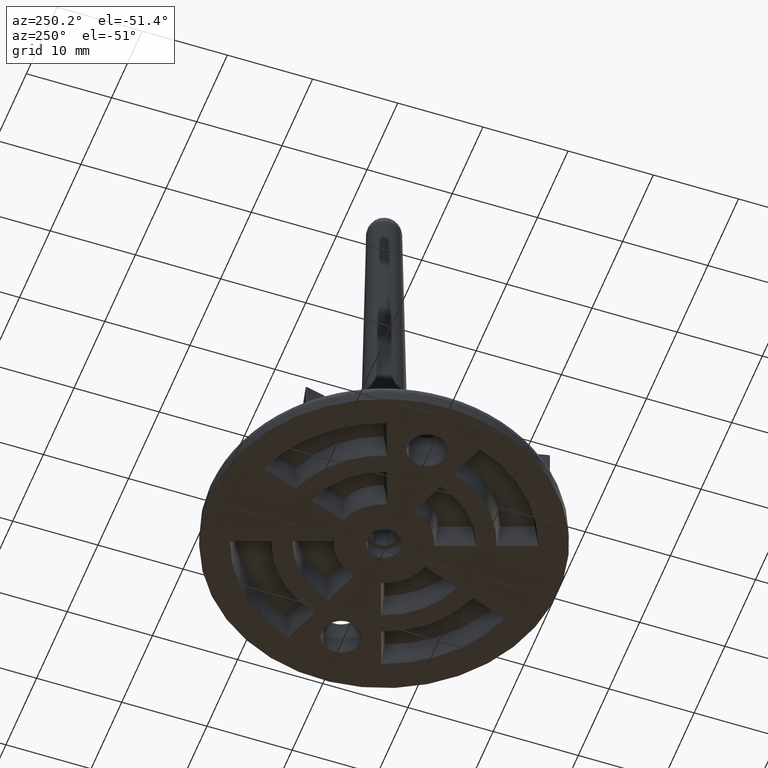
[diagram: clean part render]
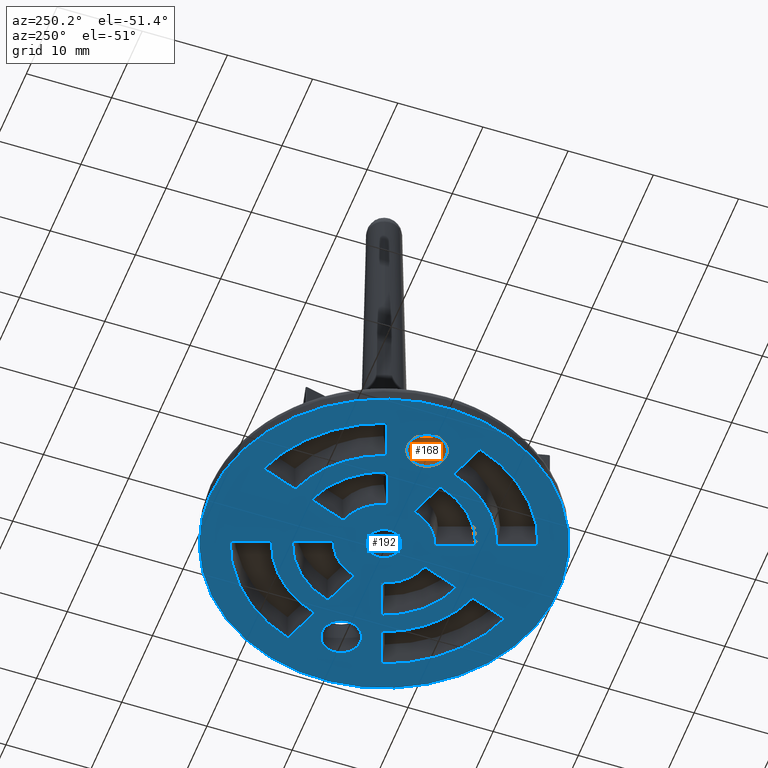
[diagram: same view with the hole feature highlighted: cylindrical wall and planar end face, labeled with their STEP entity ids]
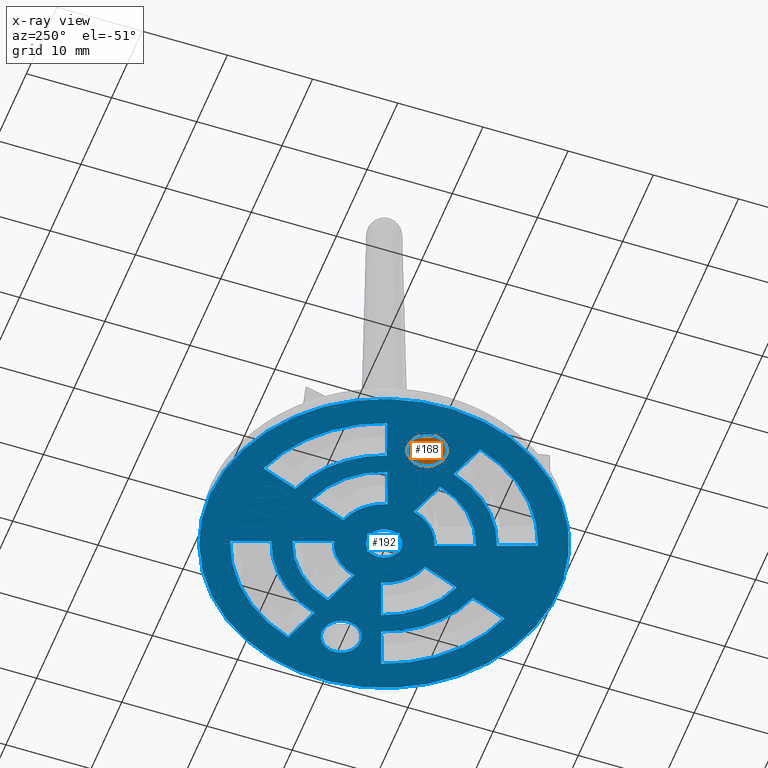
[diagram: x-ray of the same camera — body ghosted, the hole faces saturated]
A machine part, auxiliary view. The highlighted faces form one hole feature of diameter 4.5 mm: the cylindrical wall (entity #168, orange) and its adjacent planar end face (entity #192, blue) — they share a circular edge in the B-rep.
The next image is the same camera in x-ray (body ghosted, the hole faces saturated) — the bore reads through the body.
Wall:
#168 = ADVANCED_FACE( '', ( #342, #343 ), #344, .F. );
#342 = FACE_OUTER_BOUND( '', #618, .T. );
#343 = FACE_OUTER_BOUND( '', #619, .T. );
#344 = CYLINDRICAL_SURFACE( '', #620, 2.25000000000000 );
#618 = EDGE_LOOP( '', ( #1151 ) );
#619 = EDGE_LOOP( '', ( #1152 ) );
#620 = AXIS2_PLACEMENT_3D( '', #1153, #1154, #1155 );
#1151 = ORIENTED_EDGE( '', *, *, #1845, .F. );
#1152 = ORIENTED_EDGE( '', *, *, #1693, .T. );
#1153 = CARTESIAN_POINT( '', ( -14.0000000000000, 6.42906561168512E-015, 34.9993590001010 ) );
#1154 = DIRECTION( '', ( -1.12474554136660E-032, 1.83690953073357E-016, 1.00000000000000 ) );
#1155 = DIRECTION( '', ( -1.00000000000000, -3.03858167864314E-064, -1.12474554136660E-032 ) );
#1693 = EDGE_CURVE( '', #1973, #1973, #1974, .F. );
#1845 = EDGE_CURVE( '', #2237, #2237, #2238, .T. );
#1973 = VERTEX_POINT( '', #2433 );
#1974 = CIRCLE( '', #2434, 2.25000000000000 );
#2237 = VERTEX_POINT( '', #2904 );
#2238 = CIRCLE( '', #2905, 2.25000000000000 );
#2433 = CARTESIAN_POINT( '', ( -14.0000000000000, 2.25000000000000, 4.99990699999999 ) );
#2434 = AXIS2_PLACEMENT_3D( '', #3200, #3201, #3202 );
#2904 = CARTESIAN_POINT( '', ( -11.7500000000000, -9.18435845238954E-022, -4.99989699989656E-006 ) );
#2905 = AXIS2_PLACEMENT_3D( '', #3395, #3396, #3397 );
#3200 = CARTESIAN_POINT( '', ( -14.0000000000000, 9.18437682108146E-016, 4.99990699999999 ) );
#3201 = DIRECTION( '', ( 1.12474554136660E-032, -1.83690953073357E-016, -1.00000000000000 ) );
#3202 = DIRECTION( '', ( 0.000000000000000, 1.00000000000000, -1.83690953073357E-016 ) );
#3395 = CARTESIAN_POINT( '', ( -14.0000000000000, -9.18435845238954E-022, -4.99989699989656E-006 ) );
#3396 = DIRECTION( '', ( -1.12474554136660E-032, -1.26466724719837E-022, 1.00000000000000 ) );
#3397 = DIRECTION( '', ( 1.00000000000000, 4.75158170683057E-048, 1.12474554136660E-032 ) );
End face:
#192 = ADVANCED_FACE( '', ( #398, #399, #400, #401, #402, #403, #404, #405, #406, #407, #408, #409 ), #410, .F. );
#398 = FACE_BOUND( '', #674, .T. );
#399 = FACE_BOUND( '', #675, .T. );
#400 = FACE_BOUND( '', #676, .T. );
#401 = FACE_BOUND( '', #677, .T. );
#402 = FACE_BOUND( '', #678, .T. );
#403 = FACE_BOUND( '', #679, .T. );
#404 = FACE_BOUND( '', #680, .T. );
#405 = FACE_OUTER_BOUND( '', #681, .T. );
#406 = FACE_BOUND( '', #682, .T. );
#407 = FACE_BOUND( '', #683, .T. );
#408 = FACE_BOUND( '', #684, .T. );
#409 = FACE_BOUND( '', #685, .T. );
#410 = PLANE( '', #686 );
#674 = EDGE_LOOP( '', ( #1324 ) );
#675 = EDGE_LOOP( '', ( #1325 ) );
#676 = EDGE_LOOP( '', ( #1326 ) );
#677 = EDGE_LOOP( '', ( #1327, #1328, #1329, #1330 ) );
#678 = EDGE_LOOP( '', ( #1331, #1332, #1333, #1334 ) );
#679 = EDGE_LOOP( '', ( #1335, #1336, #1337, #1338 ) );
#680 = EDGE_LOOP( '', ( #1339, #1340, #1341, #1342 ) );
#681 = EDGE_LOOP( '', ( #1343 ) );
#682 = EDGE_LOOP( '', ( #1344, #1345, #1346, #1347 ) );
#683 = EDGE_LOOP( '', ( #1348, #1349, #1350, #1351 ) );
#684 = EDGE_LOOP( '', ( #1352, #1353, #1354, #1355 ) );
#685 = EDGE_LOOP( '', ( #1356, #1357, #1358, #1359 ) );
#686 = AXIS2_PLACEMENT_3D( '', #1360, #1361, #1362 );
#1324 = ORIENTED_EDGE( '', *, *, #1879, .T. );
#1325 = ORIENTED_EDGE( '', *, *, #1885, .T. );
#1326 = ORIENTED_EDGE( '', *, *, #1845, .T. );
#1327 = ORIENTED_EDGE( '', *, *, #1749, .F. );
#1328 = ORIENTED_EDGE( '', *, *, #1752, .F. );
#1329 = ORIENTED_EDGE( '', *, *, #1754, .F. );
#1330 = ORIENTED_EDGE( '', *, *, #1755, .F. );
#1331 = ORIENTED_EDGE( '', *, *, #1770, .F. );
#1332 = ORIENTED_EDGE( '', *, *, #1774, .F. );
#1333 = ORIENTED_EDGE( '', *, *, #1777, .F. );
#1334 = ORIENTED_EDGE( '', *, *, #1779, .F. );
#1335 = ORIENTED_EDGE( '', *, *, #1794, .F. );
#1336 = ORIENTED_EDGE( '', *, *, #1798, .F. );
#1337 = ORIENTED_EDGE( '', *, *, #1801, .F. );
#1338 = ORIENTED_EDGE( '', *, *, #1803, .F. );
#1339 = ORIENTED_EDGE( '', *, *, #1810, .T. );
#1340 = ORIENTED_EDGE( '', *, *, #1814, .T. );
#1341 = ORIENTED_EDGE( '', *, *, #1815, .T. );
#1342 = ORIENTED_EDGE( '', *, *, #1806, .T. );
#1343 = ORIENTED_EDGE( '', *, *, #1711, .T. );
#1344 = ORIENTED_EDGE( '', *, *, #1782, .F. );
#1345 = ORIENTED_EDGE( '', *, *, #1786, .F. );
#1346 = ORIENTED_EDGE( '', *, *, #1789, .F. );
#1347 = ORIENTED_EDGE( '', *, *, #1791, .F. );
#1348 = ORIENTED_EDGE( '', *, *, #1758, .F. );
#1349 = ORIENTED_EDGE( '', *, *, #1762, .F. );
#1350 = ORIENTED_EDGE( '', *, *, #1765, .F. );
#1351 = ORIENTED_EDGE( '', *, *, #1767, .F. );
#1352 = ORIENTED_EDGE( '', *, *, #1738, .T. );
#1353 = ORIENTED_EDGE( '', *, *, #1742, .T. );
#1354 = ORIENTED_EDGE( '', *, *, #1743, .T. );
#1355 = ORIENTED_EDGE( '', *, *, #1734, .T. );
#1356 = ORIENTED_EDGE( '', *, *, #1722, .F. );
#1357 = ORIENTED_EDGE( '', *, *, #1726, .F. );
#1358 = ORIENTED_EDGE( '', *, *, #1729, .F. );
#1359 = ORIENTED_EDGE( '', *, *, #1731, .F. );
#1360 = CARTESIAN_POINT( '', ( 20.4344021649691, 1.25120493638915E-015, 6.25602468194573E-016 ) );
#1361 = DIRECTION( '', ( -1.12474554136660E-032, 1.83690953073357E-016, 1.00000000000000 ) );
#1362 = DIRECTION( '', ( 6.12303176911189E-017, -1.00000000000000, 1.83690953073357E-016 ) );
#1711 = EDGE_CURVE( '', #2009, #2009, #2010, .T. );
#1722 = EDGE_CURVE( '', #2027, #2029, #2030, .T. );
#1726 = EDGE_CURVE( '', #2034, #2027, #2036, .T. );
#1729 = EDGE_CURVE( '', #2039, #2034, #2041, .F. );
#1731 = EDGE_CURVE( '', #2029, #2039, #2043, .T. );
#1734 = EDGE_CURVE( '', #2049, #2047, #2050, .F. );
#1738 = EDGE_CURVE( '', #2047, #2054, #2056, .F. );
#1742 = EDGE_CURVE( '', #2054, #2060, #2062, .T. );
#1743 = EDGE_CURVE( '', #2060, #2049, #2063, .F. );
#1749 = EDGE_CURVE( '', #2072, #2074, #2075, .T. );
#1752 = EDGE_CURVE( '', #2077, #2072, #2079, .T. );
#1754 = EDGE_CURVE( '', #2080, #2077, #2082, .F. );
#1755 = EDGE_CURVE( '', #2074, #2080, #2083, .T. );
#1758 = EDGE_CURVE( '', #2087, #2089, #2090, .T. );
#1762 = EDGE_CURVE( '', #2094, #2087, #2096, .T. );
#1765 = EDGE_CURVE( '', #2099, #2094, #2101, .F. );
#1767 = EDGE_CURVE( '', #2089, #2099, #2103, .T. );
#1770 = EDGE_CURVE( '', #2107, #2109, #2110, .T. );
#1774 = EDGE_CURVE( '', #2114, #2107, #2116, .F. );
#1777 = EDGE_CURVE( '', #2119, #2114, #2121, .T. );
#1779 = EDGE_CURVE( '', #2109, #2119, #2123, .T. );
#1782 = EDGE_CURVE( '', #2127, #2129, #2130, .T. );
#1786 = EDGE_CURVE( '', #2134, #2127, #2136, .F. );
#1789 = EDGE_CURVE( '', #2139, #2134, #2141, .T. );
#1791 = EDGE_CURVE( '', #2129, #2139, #2143, .T. );
#1794 = EDGE_CURVE( '', #2147, #2149, #2150, .T. );
#1798 = EDGE_CURVE( '', #2154, #2147, #2156, .F. );
#1801 = EDGE_CURVE( '', #2159, #2154, #2161, .T. );
#1803 = EDGE_CURVE( '', #2149, #2159, #2163, .T. );
#1806 = EDGE_CURVE( '', #2169, #2167, #2170, .F. );
#1810 = EDGE_CURVE( '', #2167, #2174, #2176, .F. );
#1814 = EDGE_CURVE( '', #2174, #2180, #2182, .F. );
#1815 = EDGE_CURVE( '', #2180, #2169, #2183, .T. );
#1845 = EDGE_CURVE( '', #2237, #2237, #2238, .T. );
#1879 = EDGE_CURVE( '', #2290, #2290, #2291, .T. );
#1885 = EDGE_CURVE( '', #2302, #2302, #2303, .T. );
#2009 = VERTEX_POINT( '', #2485 );
#2010 = CIRCLE( '', #2486, 20.4344021649691 );
#2027 = VERTEX_POINT( '', #2511 );
#2029 = VERTEX_POINT( '', #2516 );
#2030 = CIRCLE( '', #2517, 12.4511506137665 );
#2034 = VERTEX_POINT( '', #2525 );
#2036 = LINE( '', #2530, #2531 );
#2039 = VERTEX_POINT( '', #2534 );
#2041 = CIRCLE( '', #2539, 17.0178493862335 );
#2043 = LINE( '', #2542, #2543 );
#2047 = VERTEX_POINT( '', #2547 );
#2049 = VERTEX_POINT( '', #2552 );
#2050 = CIRCLE( '', #2553, 10.1417493862335 );
#2054 = VERTEX_POINT( '', #2561 );
#2056 = LINE( '', #2566, #2567 );
#2060 = VERTEX_POINT( '', #2572 );
#2062 = CIRCLE( '', #2577, 5.57505061376649 );
#2063 = LINE( '', #2578, #2579 );
#2072 = VERTEX_POINT( '', #2590 );
#2074 = VERTEX_POINT( '', #2595 );
#2075 = CIRCLE( '', #2596, 17.0178493862335 );
#2077 = VERTEX_POINT( '', #2601 );
#2079 = LINE( '', #2606, #2607 );
#2080 = VERTEX_POINT( '', #2608 );
#2082 = CIRCLE( '', #2613, 12.4511506137665 );
#2083 = LINE( '', #2614, #2615 );
#2087 = VERTEX_POINT( '', #2619 );
#2089 = VERTEX_POINT( '', #2624 );
#2090 = CIRCLE( '', #2625, 5.57505061376649 );
#2094 = VERTEX_POINT( '', #2633 );
#2096 = LINE( '', #2638, #2639 );
#2099 = VERTEX_POINT( '', #2642 );
#2101 = CIRCLE( '', #2647, 10.1417493862335 );
#2103 = LINE( '', #2650, #2651 );
#2107 = VERTEX_POINT( '', #2656 );
#2109 = VERTEX_POINT( '', #2661 );
#2110 = LINE( '', #2662, #2663 );
#2114 = VERTEX_POINT( '', #2670 );
#2116 = CIRCLE( '', #2675, 5.57505061376649 );
#2119 = VERTEX_POINT( '', #2679 );
#2121 = LINE( '', #2684, #2685 );
#2123 = CIRCLE( '', #2687, 10.1417493862335 );
#2127 = VERTEX_POINT( '', #2692 );
#2129 = VERTEX_POINT( '', #2697 );
#2130 = LINE( '', #2698, #2699 );
#2134 = VERTEX_POINT( '', #2706 );
#2136 = CIRCLE( '', #2711, 12.4511506137665 );
#2139 = VERTEX_POINT( '', #2715 );
#2141 = LINE( '', #2720, #2721 );
#2143 = CIRCLE( '', #2723, 17.0178493862335 );
#2147 = VERTEX_POINT( '', #2728 );
#2149 = VERTEX_POINT( '', #2733 );
#2150 = LINE( '', #2734, #2735 );
#2154 = VERTEX_POINT( '', #2742 );
#2156 = CIRCLE( '', #2747, 12.4511506137665 );
#2159 = VERTEX_POINT( '', #2751 );
#2161 = LINE( '', #2756, #2757 );
#2163 = CIRCLE( '', #2759, 17.0178493862335 );
#2167 = VERTEX_POINT( '', #2764 );
#2169 = VERTEX_POINT( '', #2769 );
#2170 = LINE( '', #2770, #2771 );
#2174 = VERTEX_POINT( '', #2778 );
#2176 = CIRCLE( '', #2783, 10.1417493862335 );
#2180 = VERTEX_POINT( '', #2788 );
#2182 = LINE( '', #2793, #2794 );
#2183 = CIRCLE( '', #2795, 5.57505061376649 );
#2237 = VERTEX_POINT( '', #2904 );
#2238 = CIRCLE( '', #2905, 2.25000000000000 );
#2290 = VERTEX_POINT( '', #3026 );
#2291 = CIRCLE( '', #3027, 2.00000000000000 );
#2302 = VERTEX_POINT( '', #3038 );
#2303 = CIRCLE( '', #3039, 2.25000000000001 );
#2485 = CARTESIAN_POINT( '', ( -1.25120493638915E-015, 20.4344021649691, -3.75361480916744E-015 ) );
#2486 = AXIS2_PLACEMENT_3D( '', #3222, #3223, #3224 );
#2511 = CARTESIAN_POINT( '', ( 3.91100585500280, -11.8209637851079, 2.59740882154510E-015 ) );
#2516 = CARTESIAN_POINT( '', ( 11.8209637851079, -3.91100585500280, 1.14442111059395E-015 ) );
#2517 = AXIS2_PLACEMENT_3D( '', #3236, #3237, #3238 );
#2525 = CARTESIAN_POINT( '', ( 5.47340782340071, -16.1136279133926, 3.38593238649353E-015 ) );
#2530 = CARTESIAN_POINT( '', ( -0.345679449193570, -0.125817030103995, 4.49116167785666E-016 ) );
#2531 = VECTOR( '', #3240, 1000.00000000000 );
#2534 = CARTESIAN_POINT( '', ( 16.1136279133926, -5.47340782340071, 1.43142021725265E-015 ) );
#2539 = AXIS2_PLACEMENT_3D( '', #3244, #3245, #3246 );
#2542 = CARTESIAN_POINT( '', ( 0.125817030103996, 0.345679449193571, 3.62506530132764E-016 ) );
#2543 = VECTOR( '', #3248, 1000.00000000000 );
#2547 = CARTESIAN_POINT( '', ( 9.64967273565335, -3.12072054307273, 9.99252848445638E-016 ) );
#2552 = CARTESIAN_POINT( '', ( 3.12072054307274, -9.64967273565335, 2.19856229927115E-015 ) );
#2553 = AXIS2_PLACEMENT_3D( '', #3252, #3253, #3254 );
#2561 = CARTESIAN_POINT( '', ( 5.35323384756485, -1.55694467446474, 7.12001368747919E-016 ) );
#2566 = CARTESIAN_POINT( '', ( 0.125817030103998, 0.345679449193571, 3.62506530132764E-016 ) );
#2567 = VECTOR( '', #3256, 1000.00000000000 );
#2572 = CARTESIAN_POINT( '', ( 1.55694467446474, -5.35323384756485, 1.40934534509674E-015 ) );
#2577 = AXIS2_PLACEMENT_3D( '', #3261, #3262, #3263 );
#2578 = CARTESIAN_POINT( '', ( -1.90273881042324, 4.15216840562495, -3.36711054137321E-016 ) );
#2579 = VECTOR( '', #3264, 1000.00000000000 );
#2590 = CARTESIAN_POINT( '', ( -5.47340782340071, -16.1136279133926, 3.38593238649353E-015 ) );
#2595 = CARTESIAN_POINT( '', ( -16.1136279133926, -5.47340782340071, 1.43142021725265E-015 ) );
#2596 = AXIS2_PLACEMENT_3D( '', #3273, #3274, #3275 );
#2601 = CARTESIAN_POINT( '', ( -3.91100585500280, -11.8209637851079, 2.59740882154510E-015 ) );
#2606 = CARTESIAN_POINT( '', ( 2.37827608926584, 5.45869634135389, -5.76708415868336E-016 ) );
#2607 = VECTOR( '', #3276, 1000.00000000000 );
#2608 = CARTESIAN_POINT( '', ( -11.8209637851079, -3.91100585500280, 1.14442111059395E-015 ) );
#2613 = AXIS2_PLACEMENT_3D( '', #3277, #3278, #3279 );
#2614 = CARTESIAN_POINT( '', ( 3.46383897119794, 1.65220738492252, 1.22509168401749E-016 ) );
#2615 = VECTOR( '', #3280, 1000.00000000000 );
#2619 = CARTESIAN_POINT( '', ( -5.35323384756485, -1.55694467446474, 7.12001368747919E-016 ) );
#2624 = CARTESIAN_POINT( '', ( -1.55694467446474, -5.35323384756485, 1.40934534509674E-015 ) );
#2625 = AXIS2_PLACEMENT_3D( '', #3284, #3285, #3286 );
#2633 = CARTESIAN_POINT( '', ( -9.64967273565335, -3.12072054307273, 9.99252848445637E-016 ) );
#2638 = CARTESIAN_POINT( '', ( -0.125817030103997, 0.345679449193574, 3.62506530132764E-016 ) );
#2639 = VECTOR( '', #3288, 1000.00000000000 );
#2642 = CARTESIAN_POINT( '', ( -3.12072054307274, -9.64967273565335, 2.19856229927115E-015 ) );
#2647 = AXIS2_PLACEMENT_3D( '', #3292, #3293, #3294 );
#2650 = CARTESIAN_POINT( '', ( 0.345679449193572, -0.125817030103996, 4.49116167785667E-016 ) );
#2651 = VECTOR( '', #3296, 1000.00000000000 );
#2656 = CARTESIAN_POINT( '', ( -5.35323384756485, 1.55694467446474, 1.40008066478090E-016 ) );
#2661 = CARTESIAN_POINT( '', ( -9.64967273565335, 3.12072054307273, -1.47243413219629E-016 ) );
#2662 = CARTESIAN_POINT( '', ( -0.125817030103994, -0.345679449193574, 4.89502905093245E-016 ) );
#2663 = VECTOR( '', #3298, 1000.00000000000 );
#2670 = CARTESIAN_POINT( '', ( -1.55694467446474, 5.35323384756485, -5.57335909870734E-016 ) );
#2675 = AXIS2_PLACEMENT_3D( '', #3302, #3303, #3304 );
#2679 = CARTESIAN_POINT( '', ( -3.12072054307274, 9.64967273565335, -1.34655286404514E-015 ) );
#2684 = CARTESIAN_POINT( '', ( -1.21137991203610, 4.40380246583294, -3.82933954482646E-016 ) );
#2685 = VECTOR( '', #3306, 1000.00000000000 );
#2687 = AXIS2_PLACEMENT_3D( '', #3310, #3311, #3312 );
#2692 = CARTESIAN_POINT( '', ( -11.8209637851079, 3.91100585500279, -2.92411675367937E-016 ) );
#2697 = CARTESIAN_POINT( '', ( -16.1136279133926, 5.47340782340071, -5.79410782026638E-016 ) );
#2698 = CARTESIAN_POINT( '', ( -0.125817030103994, -0.345679449193574, 9.15507622706249E-016 ) );
#2699 = VECTOR( '', #3314, 1000.00000000000 );
#2706 = CARTESIAN_POINT( '', ( -3.91100585500280, 11.8209637851079, -1.74539938631909E-015 ) );
#2711 = AXIS2_PLACEMENT_3D( '', #3318, #3319, #3320 );
#2715 = CARTESIAN_POINT( '', ( -5.47340782340071, 16.1136279133926, -2.53392295126752E-015 ) );
#2720 = CARTESIAN_POINT( '', ( -1.21137991203610, 4.40380246583294, -3.82933954482646E-016 ) );
#2721 = VECTOR( '', #3322, 1000.00000000000 );
#2723 = AXIS2_PLACEMENT_3D( '', #3326, #3327, #3328 );
#2728 = CARTESIAN_POINT( '', ( 3.91100585500280, 11.8209637851079, -1.74539938631909E-015 ) );
#2733 = CARTESIAN_POINT( '', ( 5.47340782340071, 16.1136279133926, -2.53392295126752E-015 ) );
#2734 = CARTESIAN_POINT( '', ( 1.68691719087869, 5.71033040156188, -6.22931316213661E-016 ) );
#2735 = VECTOR( '', #3330, 1000.00000000000 );
#2742 = CARTESIAN_POINT( '', ( 11.8209637851079, 3.91100585500280, -2.92411675367937E-016 ) );
#2747 = AXIS2_PLACEMENT_3D( '', #3334, #3335, #3336 );
#2751 = CARTESIAN_POINT( '', ( 16.1136279133926, 5.47340782340071, -5.79410782026638E-016 ) );
#2756 = CARTESIAN_POINT( '', ( 3.71547303140593, 0.960848486535372, 2.49505543362230E-016 ) );
#2757 = VECTOR( '', #3338, 1000.00000000000 );
#2759 = AXIS2_PLACEMENT_3D( '', #3342, #3343, #3344 );
#2764 = CARTESIAN_POINT( '', ( 9.64967273565335, 3.12072054307274, -1.47243413219630E-016 ) );
#2769 = CARTESIAN_POINT( '', ( 5.35323384756485, 1.55694467446474, 1.40008066478089E-016 ) );
#2770 = CARTESIAN_POINT( '', ( 3.71547303140593, 0.960848486535374, 2.49505543362229E-016 ) );
#2771 = VECTOR( '', #3346, 1000.00000000000 );
#2778 = CARTESIAN_POINT( '', ( 3.12072054307274, 9.64967273565335, -1.34655286404514E-015 ) );
#2783 = AXIS2_PLACEMENT_3D( '', #3350, #3351, #3352 );
#2788 = CARTESIAN_POINT( '', ( 1.55694467446474, 5.35323384756485, -5.57335909870734E-016 ) );
#2793 = CARTESIAN_POINT( '', ( 1.68691719087869, 5.71033040156188, -6.22931316213661E-016 ) );
#2794 = VECTOR( '', #3357, 1000.00000000000 );
#2795 = AXIS2_PLACEMENT_3D( '', #3358, #3359, #3360 );
#2904 = CARTESIAN_POINT( '', ( -11.7500000000000, -9.18435845238954E-022, -4.99989699989656E-006 ) );
#2905 = AXIS2_PLACEMENT_3D( '', #3395, #3396, #3397 );
#3026 = CARTESIAN_POINT( '', ( 2.00000000000000, -9.18435845238954E-022, -4.99989699989656E-006 ) );
#3027 = AXIS2_PLACEMENT_3D( '', #3434, #3435, #3436 );
#3038 = CARTESIAN_POINT( '', ( 16.2500000000000, -9.18435845238954E-022, -4.99989699989656E-006 ) );
#3039 = AXIS2_PLACEMENT_3D( '', #3452, #3453, #3454 );
#3222 = CARTESIAN_POINT( '', ( 0.000000000000000, 0.000000000000000, 0.000000000000000 ) );
#3223 = DIRECTION( '', ( 1.12474554136660E-032, -1.83690953073357E-016, -1.00000000000000 ) );
#3224 = DIRECTION( '', ( -6.12303176911189E-017, 1.00000000000000, -1.83690953073357E-016 ) );
#3236 = CARTESIAN_POINT( '', ( -4.79146906736365E-048, 7.82532125920789E-032, 4.26004717613004E-016 ) );
#3237 = DIRECTION( '', ( -1.12474554136660E-032, 1.83690953073357E-016, 1.00000000000000 ) );
#3238 = DIRECTION( '', ( 6.12303176911189E-017, -1.00000000000000, 1.83690953073357E-016 ) );
#3240 = DIRECTION( '', ( -0.342020143325669, 0.939692620785908, -1.72613033108164E-016 ) );
#3244 = CARTESIAN_POINT( '', ( -4.79146906736365E-048, 7.82532125920789E-032, 4.26004717613004E-016 ) );
#3245 = DIRECTION( '', ( -1.12474554136660E-032, 1.83690953073357E-016, 1.00000000000000 ) );
#3246 = DIRECTION( '', ( 6.12303176911189E-017, -1.00000000000000, 1.83690953073357E-016 ) );
#3248 = DIRECTION( '', ( 0.939692620785908, -0.342020143325669, 6.28260060977781E-017 ) );
#3252 = CARTESIAN_POINT( '', ( -4.79146906736365E-048, 7.82532125920789E-032, 4.26004717613004E-016 ) );
#3253 = DIRECTION( '', ( 1.12474554136660E-032, -1.83690953073357E-016, -1.00000000000000 ) );
#3254 = DIRECTION( '', ( -6.12303176911189E-017, 1.00000000000000, -1.83690953073357E-016 ) );
#3256 = DIRECTION( '', ( 0.939692620785908, -0.342020143325669, 6.28260060977781E-017 ) );
#3261 = CARTESIAN_POINT( '', ( -4.79146906736365E-048, 7.82532125920789E-032, 4.26004717613004E-016 ) );
#3262 = DIRECTION( '', ( 1.12474554136660E-032, -1.83690953073357E-016, -1.00000000000000 ) );
#3263 = DIRECTION( '', ( -6.12303176911189E-017, 1.00000000000000, -1.83690953073357E-016 ) );
#3264 = DIRECTION( '', ( -0.342020143325669, 0.939692620785908, -1.72613033108164E-016 ) );
#3273 = CARTESIAN_POINT( '', ( 2.39573453368183E-047, -3.91266062960395E-031, -2.13002358806502E-015 ) );
#3274 = DIRECTION( '', ( 1.12474554136660E-032, -1.83690953073357E-016, -1.00000000000000 ) );
#3275 = DIRECTION( '', ( -6.12303176911189E-017, 1.00000000000000, -1.83690953073357E-016 ) );
#3276 = DIRECTION( '', ( -0.342020143325669, -0.939692620785908, 1.72613033108164E-016 ) );
#3277 = CARTESIAN_POINT( '', ( 2.39573453368183E-047, -3.91266062960395E-031, -2.13002358806502E-015 ) );
#3278 = DIRECTION( '', ( 1.12474554136660E-032, -1.83690953073357E-016, -1.00000000000000 ) );
#3279 = DIRECTION( '', ( -6.12303176911189E-017, 1.00000000000000, -1.83690953073357E-016 ) );
#3280 = DIRECTION( '', ( 0.939692620785908, 0.342020143325669, -6.28260060977781E-017 ) );
#3284 = CARTESIAN_POINT( '', ( -4.79146906736365E-048, 7.82532125920789E-032, 4.26004717613004E-016 ) );
#3285 = DIRECTION( '', ( -1.12474554136660E-032, 1.83690953073357E-016, 1.00000000000000 ) );
#3286 = DIRECTION( '', ( 6.12303176911189E-017, -1.00000000000000, 1.83690953073357E-016 ) );
#3288 = DIRECTION( '', ( 0.939692620785908, 0.342020143325669, -6.28260060977781E-017 ) );
#3292 = CARTESIAN_POINT( '', ( -4.79146906736365E-048, 7.82532125920789E-032, 4.26004717613004E-016 ) );
#3293 = DIRECTION( '', ( -1.12474554136660E-032, 1.83690953073357E-016, 1.00000000000000 ) );
#3294 = DIRECTION( '', ( 6.12303176911189E-017, -1.00000000000000, 1.83690953073357E-016 ) );
#3296 = DIRECTION( '', ( -0.342020143325669, -0.939692620785908, 1.72613033108164E-016 ) );
#3298 = DIRECTION( '', ( -0.939692620785908, 0.342020143325669, -6.28260060977781E-017 ) );
#3302 = CARTESIAN_POINT( '', ( -4.79146906736365E-048, 7.82532125920789E-032, 4.26004717613004E-016 ) );
#3303 = DIRECTION( '', ( 1.12474554136660E-032, -1.83690953073357E-016, -1.00000000000000 ) );
#3304 = DIRECTION( '', ( -6.12303176911189E-017, 1.00000000000000, -1.83690953073357E-016 ) );
#3306 = DIRECTION( '', ( 0.342020143325669, -0.939692620785908, 1.72613033108164E-016 ) );
#3310 = CARTESIAN_POINT( '', ( -4.79146906736365E-048, 7.82532125920789E-032, 4.26004717613004E-016 ) );
#3311 = DIRECTION( '', ( 1.12474554136660E-032, -1.83690953073357E-016, -1.00000000000000 ) );
#3312 = DIRECTION( '', ( -6.12303176911189E-017, 1.00000000000000, -1.83690953073357E-016 ) );
#3314 = DIRECTION( '', ( -0.939692620785908, 0.342020143325669, -6.28260060977781E-017 ) );
#3318 = CARTESIAN_POINT( '', ( 2.39573453368183E-047, -3.91266062960395E-031, -2.13002358806502E-015 ) );
#3319 = DIRECTION( '', ( 1.12474554136660E-032, -1.83690953073357E-016, -1.00000000000000 ) );
#3320 = DIRECTION( '', ( -6.12303176911189E-017, 1.00000000000000, -1.83690953073357E-016 ) );
#3322 = DIRECTION( '', ( 0.342020143325669, -0.939692620785908, 1.72613033108164E-016 ) );
#3326 = CARTESIAN_POINT( '', ( 2.39573453368183E-047, -3.91266062960395E-031, -2.13002358806502E-015 ) );
#3327 = DIRECTION( '', ( 1.12474554136660E-032, -1.83690953073357E-016, -1.00000000000000 ) );
#3328 = DIRECTION( '', ( -6.12303176911189E-017, 1.00000000000000, -1.83690953073357E-016 ) );
#3330 = DIRECTION( '', ( 0.342020143325669, 0.939692620785908, -1.72613033108164E-016 ) );
#3334 = CARTESIAN_POINT( '', ( 2.39573453368183E-047, -3.91266062960395E-031, -2.13002358806502E-015 ) );
#3335 = DIRECTION( '', ( 1.12474554136660E-032, -1.83690953073357E-016, -1.00000000000000 ) );
#3336 = DIRECTION( '', ( -6.12303176911189E-017, 1.00000000000000, -1.83690953073357E-016 ) );
#3338 = DIRECTION( '', ( -0.939692620785908, -0.342020143325669, 6.28260060977781E-017 ) );
#3342 = CARTESIAN_POINT( '', ( 2.39573453368183E-047, -3.91266062960395E-031, -2.13002358806502E-015 ) );
#3343 = DIRECTION( '', ( 1.12474554136660E-032, -1.83690953073357E-016, -1.00000000000000 ) );
#3344 = DIRECTION( '', ( -6.12303176911189E-017, 1.00000000000000, -1.83690953073357E-016 ) );
#3346 = DIRECTION( '', ( -0.939692620785908, -0.342020143325669, 6.28260060977781E-017 ) );
#3350 = CARTESIAN_POINT( '', ( -4.79146906736365E-048, 7.82532125920789E-032, 4.26004717613004E-016 ) );
#3351 = DIRECTION( '', ( 1.12474554136660E-032, -1.83690953073357E-016, -1.00000000000000 ) );
#3352 = DIRECTION( '', ( -6.12303176911189E-017, 1.00000000000000, -1.83690953073357E-016 ) );
#3357 = DIRECTION( '', ( 0.342020143325669, 0.939692620785908, -1.72613033108164E-016 ) );
#3358 = CARTESIAN_POINT( '', ( -4.79146906736365E-048, 7.82532125920789E-032, 4.26004717613004E-016 ) );
#3359 = DIRECTION( '', ( 1.12474554136660E-032, -1.83690953073357E-016, -1.00000000000000 ) );
#3360 = DIRECTION( '', ( -6.12303176911189E-017, 1.00000000000000, -1.83690953073357E-016 ) );
#3395 = CARTESIAN_POINT( '', ( -14.0000000000000, -9.18435845238954E-022, -4.99989699989656E-006 ) );
#3396 = DIRECTION( '', ( -1.12474554136660E-032, -1.26466724719837E-022, 1.00000000000000 ) );
#3397 = DIRECTION( '', ( 1.00000000000000, 4.75158170683057E-048, 1.12474554136660E-032 ) );
#3434 = CARTESIAN_POINT( '', ( 0.000000000000000, -9.18435845238954E-022, -4.99989699989656E-006 ) );
#3435 = DIRECTION( '', ( -1.12474554136660E-032, 1.95214624562515E-022, 1.00000000000000 ) );
#3436 = DIRECTION( '', ( 1.00000000000000, 0.000000000000000, 1.12474554136660E-032 ) );
#3452 = CARTESIAN_POINT( '', ( 14.0000000000000, -9.18435845238954E-022, -4.99989699989656E-006 ) );
#3453 = DIRECTION( '', ( -1.12474554136660E-032, -1.26466724448666E-022, 1.00000000000000 ) );
#3454 = DIRECTION( '', ( 1.00000000000000, 3.03858167864314E-064, 1.12474554136660E-032 ) );